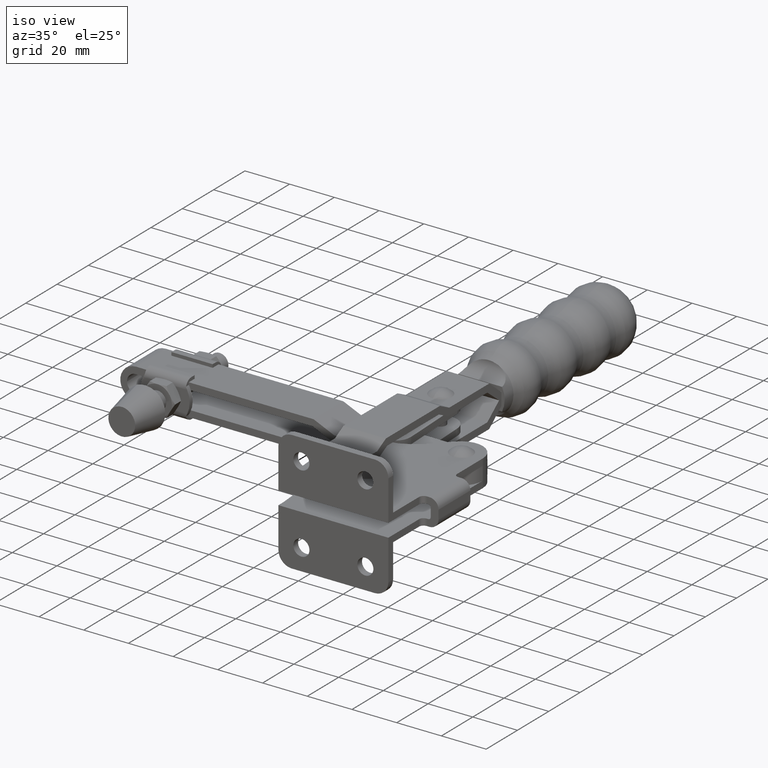
[diagram: clean part render]
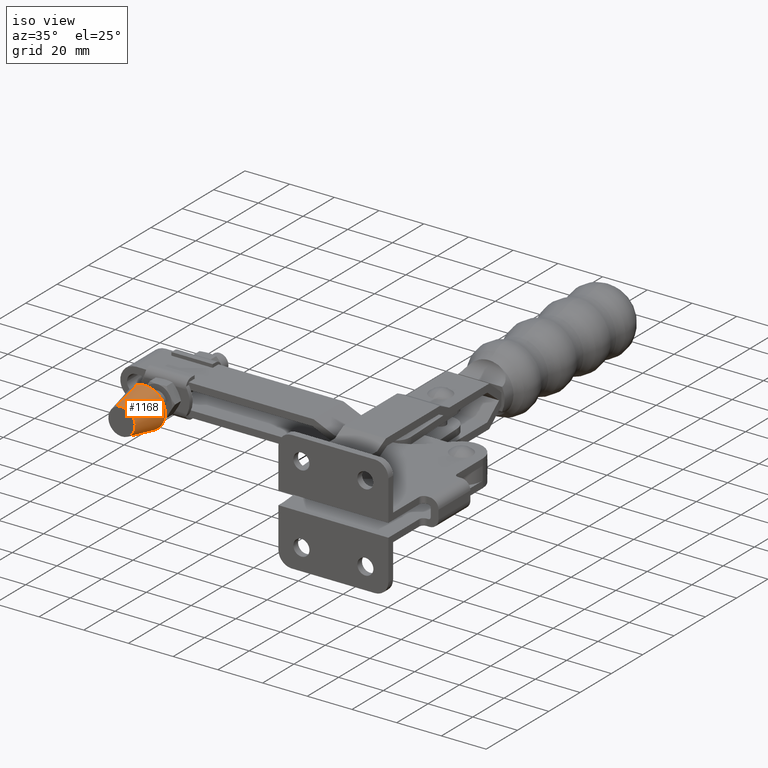
[diagram: same view with one face highlighted and labeled with its STEP entity id]
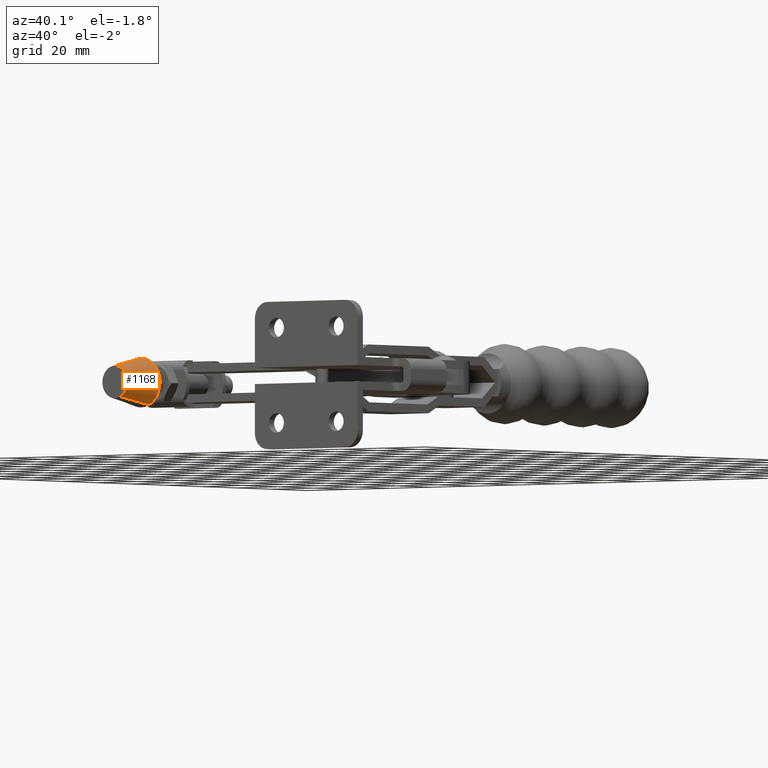
[diagram: same view with one face highlighted and labeled with its STEP entity id]
A machine part, iso view. The second image highlights one B-rep face of the part: STEP entity #1168.
A second angle (auxiliary view) of the same face is appended — the face is thin or edge-on in the first view.
In plain terms, the highlighted conical surface has half-angle 11.31 deg.
Its self-contained STEP definition (entity closure, byte-faithful):
#298 = CARTESIAN_POINT ( 'NONE',  ( -134.0527505712315700, 36.48715311168410800, 4.926604087587044300E-005 ) ) ;
#339 = ORIENTED_EDGE ( 'NONE', *, *, #6377, .T. ) ;
#561 = VERTEX_POINT ( 'NONE', #7846 ) ;
#597 = CARTESIAN_POINT ( 'NONE',  ( -131.4718752777436900, 21.48715311168410800, -5.416507086427357000 ) ) ;
#650 = LINE ( 'NONE', #597, #10075 ) ;
#844 = DIRECTION ( 'NONE',  ( 6.844972390692505100E-017, -1.000000000000000000, -1.521337024818011000E-016 ) ) ;
#1168 = ADVANCED_FACE ( 'NONE', ( #10901 ), #12236, .T. ) ;
#1238 = DIRECTION ( 'NONE',  ( 0.4301458822479773400, 0.0000000000000000000, -0.9027593920780382400 ) ) ;
#2699 = CARTESIAN_POINT ( 'NONE',  ( -136.6336258647194200, 21.48715311168410800, 5.416605618509104000 ) ) ;
#2703 = LINE ( 'NONE', #2699, #4883 ) ;
#3709 = EDGE_CURVE ( 'NONE', #4792, #561, #10650, .T. ) ;
#3761 = AXIS2_PLACEMENT_3D ( 'NONE', #298, #6828, #1238 ) ;
#3803 = VERTEX_POINT ( 'NONE', #7519 ) ;
#4792 = VERTEX_POINT ( 'NONE', #5347 ) ;
#4883 = VECTOR ( 'NONE', #10350, 1000.000000000000100 ) ;
#4925 = AXIS2_PLACEMENT_3D ( 'NONE', #6856, #6009, #6129 ) ;
#5347 = CARTESIAN_POINT ( 'NONE',  ( -131.4718752777436900, 21.48715311168410800, -5.416507086427357000 ) ) ;
#6009 = DIRECTION ( 'NONE',  ( -6.844972390692505100E-017, 1.000000000000000000, 1.521337024818011000E-016 ) ) ;
#6129 = DIRECTION ( 'NONE',  ( -0.4301458822479760600, 0.0000000000000000000, 0.9027593920780387900 ) ) ;
#6377 = EDGE_CURVE ( 'NONE', #4792, #8495, #650, .T. ) ;
#6451 = CARTESIAN_POINT ( 'NONE',  ( -134.0527505712315700, 21.48715311168410800, 4.926604087358843500E-005 ) ) ;
#6828 = DIRECTION ( 'NONE',  ( 6.844972390692505100E-017, -1.000000000000000000, -1.521337024818011000E-016 ) ) ;
#6856 = CARTESIAN_POINT ( 'NONE',  ( -134.0527505712315700, 21.48715311168410800, 4.926604087358843500E-005 ) ) ;
#7401 = DIRECTION ( 'NONE',  ( 0.4301458822479760600, 0.0000000000000000000, -0.9027593920780387900 ) ) ;
#7519 = CARTESIAN_POINT ( 'NONE',  ( -137.9240635114633400, 36.48715311168410800, 8.124883794743219300 ) ) ;
#7846 = CARTESIAN_POINT ( 'NONE',  ( -136.6336258647194200, 21.48715311168410800, 5.416605618509104000 ) ) ;
#8081 = ORIENTED_EDGE ( 'NONE', *, *, #10568, .T. ) ;
#8360 = EDGE_LOOP ( 'NONE', ( #10319, #339, #8081, #8587 ) ) ;
#8495 = VERTEX_POINT ( 'NONE', #8698 ) ;
#8587 = ORIENTED_EDGE ( 'NONE', *, *, #10991, .F. ) ;
#8698 = CARTESIAN_POINT ( 'NONE',  ( -130.1814376309997700, 36.48715311168410800, -8.124785262661470500 ) ) ;
#9080 = AXIS2_PLACEMENT_3D ( 'NONE', #6451, #844, #7401 ) ;
#10027 = DIRECTION ( 'NONE',  ( 0.08435854797207761900, 0.9805806756909202200, -0.1770456829340412400 ) ) ;
#10075 = VECTOR ( 'NONE', #10027, 1000.000000000000000 ) ;
#10319 = ORIENTED_EDGE ( 'NONE', *, *, #3709, .F. ) ;
#10350 = DIRECTION ( 'NONE',  ( -0.08435854797207773000, 0.9805806756909201100, 0.1770456829340414900 ) ) ;
#10568 = EDGE_CURVE ( 'NONE', #8495, #3803, #11137, .T. ) ;
#10650 = CIRCLE ( 'NONE', #9080, 5.999999999999997300 ) ;
#10901 = FACE_OUTER_BOUND ( 'NONE', #8360, .T. ) ;
#10991 = EDGE_CURVE ( 'NONE', #561, #3803, #2703, .T. ) ;
#11137 = CIRCLE ( 'NONE', #3761, 9.000000000000001800 ) ;
#12236 = CONICAL_SURFACE ( 'NONE', #4925, 5.999999999999997300, 0.1973955598498806600 ) ;